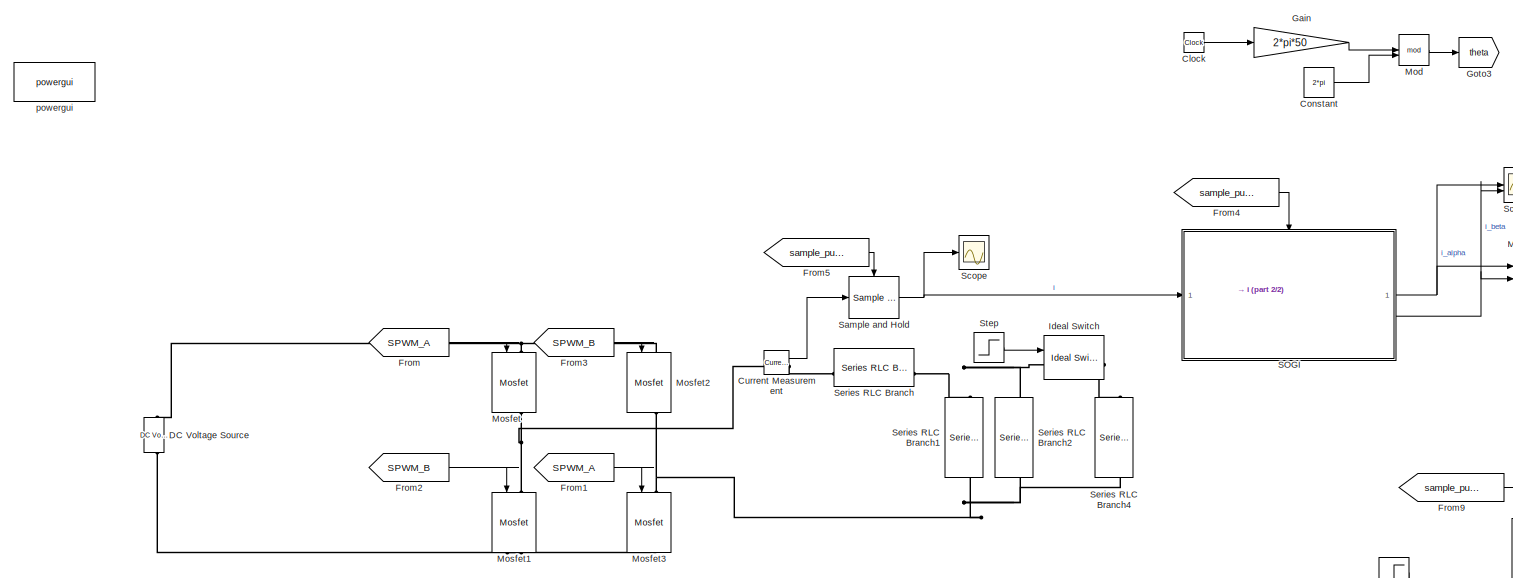
[diagram: root canvas - part 1/2, top left region]
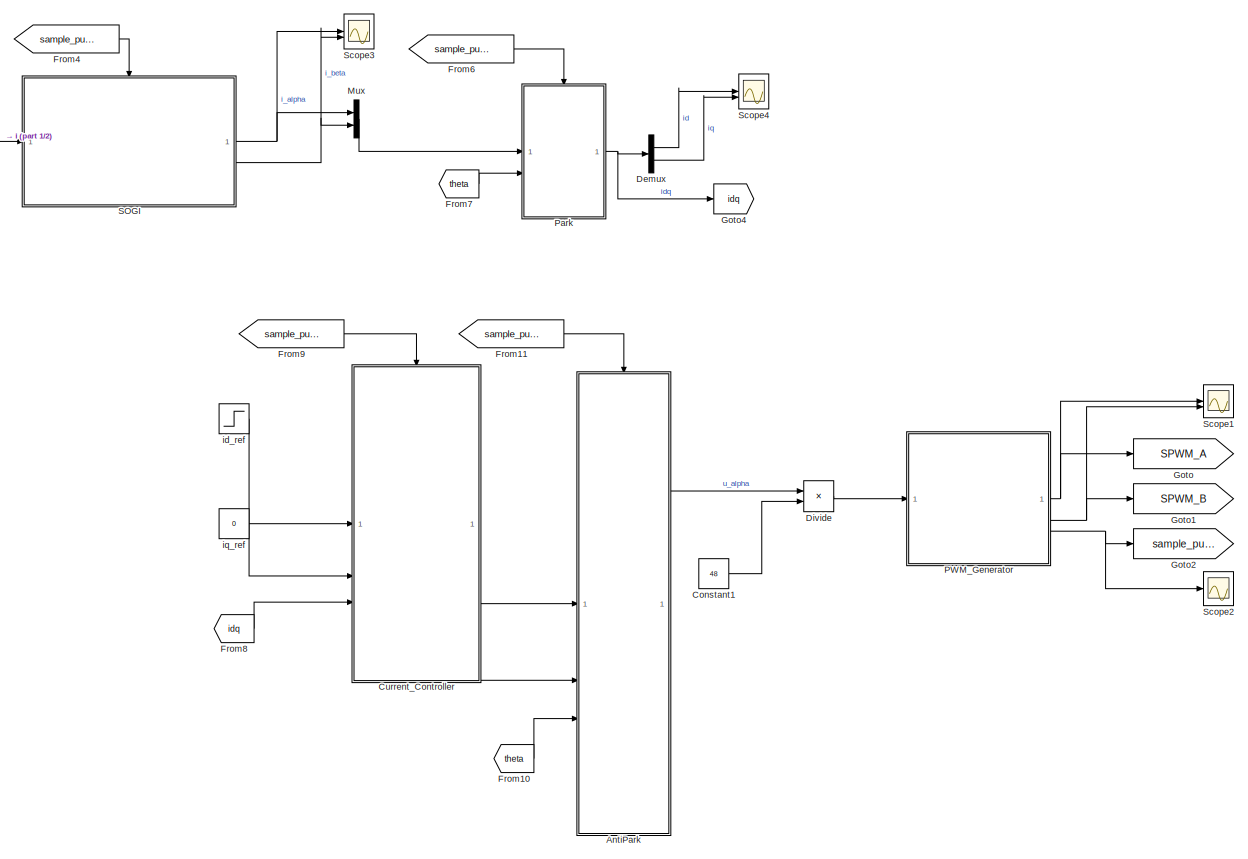
[diagram: root canvas - part 2/2, right side, full height]
MODEL slx_0fc7b11d94e0
KIND model
CONFIG AbsTol = auto
CONFIG EnableMultiTasking = off
CONFIG FixedStep = 1e-6
CONFIG MaxStep = 1e-8
CONFIG MinStep = auto
CONFIG RelTol = 1e-7
CONFIG SampleTimeConstraint = Unconstrained
CONFIG SolverName = VariableStepAuto
CONFIG StartTime = 0.0
CONFIG StopTime = 0.1
WORKSPACE source: mxarray member
WORKSPACE Ts = 2.5e-05
WORKSPACE wr = 314.159265359
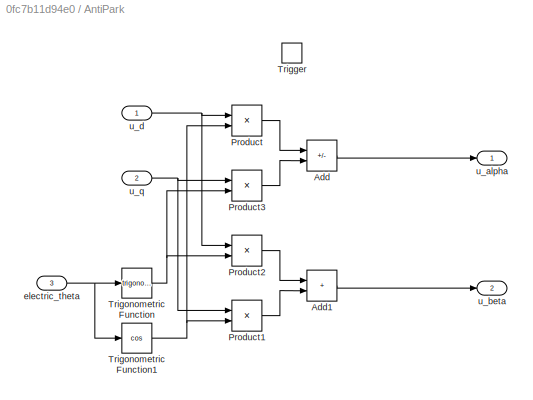
BLOCK [SubSystem] AntiPark
BLOCK [Sum] AntiPark/Add
  IconShape = rectangular
  Inputs = +-
BLOCK [Sum] AntiPark/Add1
  IconShape = rectangular
BLOCK [Product] AntiPark/Product
BLOCK [Product] AntiPark/Product1
BLOCK [Product] AntiPark/Product2
BLOCK [Product] AntiPark/Product3
BLOCK [TriggerPort] AntiPark/Trigger
  StatesWhenEnabling = held
  VariantControl = (inherit)
BLOCK [Trigonometry] AntiPark/Trigonometric Function
BLOCK [Trigonometry] AntiPark/Trigonometric Function1
  Operator = cos
BLOCK [Inport] AntiPark/electric_theta
  Port = 3
BLOCK [Outport] AntiPark/u_alpha
BLOCK [Outport] AntiPark/u_beta
  Port = 2
BLOCK [Inport] AntiPark/u_d
BLOCK [Inport] AntiPark/u_q
  Port = 2
BLOCK [Clock] Clock
BLOCK [Constant] Constant
  Value = 2*pi
BLOCK [Constant] Constant1
  Value = 48
BLOCK [Reference] Current Measurement  REF=spsCurrentMeasurementLib/Current Measurement
  LibrarySourceBlock = sps_lib/Sensors and Measurements/Current Measurement
  SourceBlock = spsCurrentMeasurementLib/Current Measurement
  SourceType = Current Measurement
  UserDataPersistent = on
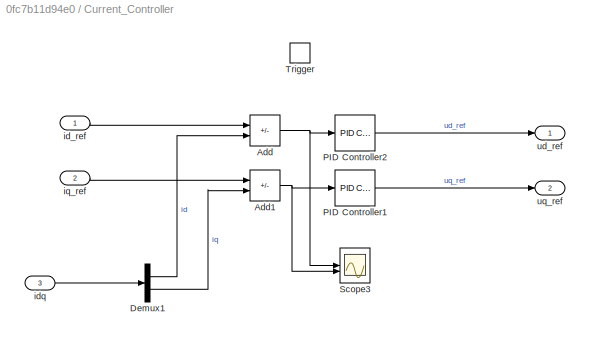
BLOCK [SubSystem] Current_Controller
BLOCK [Sum] Current_Controller/Add
  IconShape = rectangular
  Inputs = +-
BLOCK [Sum] Current_Controller/Add1
  IconShape = rectangular
  Inputs = +-
BLOCK [Demux] Current_Controller/Demux1
  Outputs = 2
BLOCK [Reference] Current_Controller/PID Controller1  REF=slpidlib/PID Controller
  LibrarySourceBlock = simulink/Continuous/PID Controller
  SourceBlock = slpidlib/PID Controller
  SourceType = PID 1dof
BLOCK [Reference] Current_Controller/PID Controller2  REF=slpidlib/PID Controller
  LibrarySourceBlock = simulink/Continuous/PID Controller
  SourceBlock = slpidlib/PID Controller
  SourceType = PID 1dof
BLOCK [Scope] Current_Controller/Scope3
  Floating = off
  NumInputPorts = 2
  ScopeSpecificationString = Simulink.scopes.TimeScopeBlockCfg('CurrentConfiguration', extmgr.ConfigurationSet(extmgr.Configuration('Core','General UI',true,'FigureColor',[1 1 1]),extmgr.Configuration('Core','Source UI',true),extmgr.Configuration('Sources','WiredSimulink',true,'DataLoggingVariableName','ScopeData3'),extmgr.Configuration('Visuals','Time Domain',true,'SerializedDisplays',{struct('MinYLimReal','-1.37462','MaxYLi...<+2341ch>
BLOCK [TriggerPort] Current_Controller/Trigger
  StatesWhenEnabling = held
  VariantControl = (inherit)
BLOCK [Inport] Current_Controller/id_ref
BLOCK [Inport] Current_Controller/idq
  Port = 3
BLOCK [Inport] Current_Controller/iq_ref
  Port = 2
BLOCK [Outport] Current_Controller/ud_ref
BLOCK [Outport] Current_Controller/uq_ref
  Port = 2
BLOCK [Reference] DC Voltage Source  REF=spsDCVoltageSourceLib/DC Voltage Source
  LibrarySourceBlock = sps_lib/Sources/DC Voltage Source
  SourceBlock = spsDCVoltageSourceLib/DC Voltage Source
  SourceType = DC Voltage Source
BLOCK [Demux] Demux
  Outputs = 2
BLOCK [Product] Divide
  Inputs = */
BLOCK [From] From
  GotoTag = SPWM_A
BLOCK [From] From1
  GotoTag = SPWM_A
BLOCK [From] From10
  GotoTag = theta
BLOCK [From] From11
  GotoTag = sample_pulse
BLOCK [From] From2
  GotoTag = SPWM_B
BLOCK [From] From3
  GotoTag = SPWM_B
BLOCK [From] From4
  GotoTag = sample_pulse
BLOCK [From] From5
  GotoTag = sample_pulse
BLOCK [From] From6
  GotoTag = sample_pulse
BLOCK [From] From7
  GotoTag = theta
BLOCK [From] From8
  GotoTag = idq
BLOCK [From] From9
  GotoTag = sample_pulse
BLOCK [Gain] Gain
  Gain = 2*pi*50
BLOCK [Goto] Goto
  GotoTag = SPWM_A
BLOCK [Goto] Goto1
  GotoTag = SPWM_B
BLOCK [Goto] Goto2
  GotoTag = sample_pulse
BLOCK [Goto] Goto3
  GotoTag = theta
BLOCK [Goto] Goto4
  GotoTag = idq
BLOCK [Reference] Ideal Switch  REF=spsIdealSwitchLib/Ideal Switch
  LibrarySourceBlock = sps_lib/Power Electronics/Ideal Switch
  SourceBlock = spsIdealSwitchLib/Ideal Switch
  SourceType = Ideal Switch
BLOCK [Math] Mod
  Operator = mod
BLOCK [Reference] Mosfet  REF=spsMosfetLib/Mosfet
  LibrarySourceBlock = sps_lib/Power Electronics/Mosfet
  NameLocation = left
  SourceBlock = spsMosfetLib/Mosfet
  SourceType = Mosfet
BLOCK [Reference] Mosfet1  REF=spsMosfetLib/Mosfet
  LibrarySourceBlock = sps_lib/Power Electronics/Mosfet
  NameLocation = left
  SourceBlock = spsMosfetLib/Mosfet
  SourceType = Mosfet
BLOCK [Reference] Mosfet2  REF=spsMosfetLib/Mosfet
  LibrarySourceBlock = sps_lib/Power Electronics/Mosfet
  NameLocation = left
  SourceBlock = spsMosfetLib/Mosfet
  SourceType = Mosfet
BLOCK [Reference] Mosfet3  REF=spsMosfetLib/Mosfet
  LibrarySourceBlock = sps_lib/Power Electronics/Mosfet
  NameLocation = left
  SourceBlock = spsMosfetLib/Mosfet
  SourceType = Mosfet
BLOCK [Mux] Mux
  DisplayOption = bar
  Inputs = 2
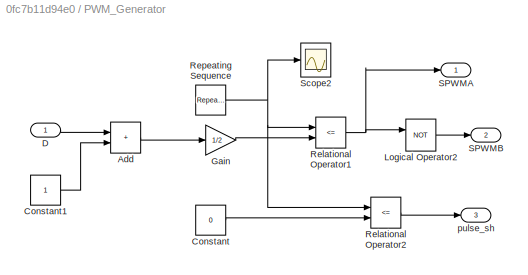
BLOCK [SubSystem] PWM_Generator
BLOCK [Sum] PWM_Generator/Add
  IconShape = rectangular
BLOCK [Constant] PWM_Generator/Constant
  Value = 0
BLOCK [Constant] PWM_Generator/Constant1
BLOCK [Inport] PWM_Generator/D
BLOCK [Gain] PWM_Generator/Gain
  Gain = 1/2
BLOCK [Logic] PWM_Generator/Logical Operator2
  AllPortsSameDT = off
  Operator = NOT
  OutDataTypeStr = boolean
BLOCK [RelationalOperator] PWM_Generator/Relational Operator1
  InputSameDT = off
  Operator = <=
  OutDataTypeStr = boolean
  RndMeth = Simplest
BLOCK [RelationalOperator] PWM_Generator/Relational Operator2
  InputSameDT = off
  Operator = <=
  OutDataTypeStr = boolean
  RndMeth = Simplest
BLOCK [Reference] PWM_Generator/Repeating Sequence  REF=simulink/Sources/Repeating
Sequence
  SourceBlock = simulink/Sources/Repeating\nSequence
  SourceType = Repeating table
BLOCK [Outport] PWM_Generator/SPWMA
BLOCK [Outport] PWM_Generator/SPWMB
  Port = 2
BLOCK [Scope] PWM_Generator/Scope2
  Floating = off
  NumInputPorts = 1
  ScopeSpecificationString = Simulink.scopes.TimeScopeBlockCfg('CurrentConfiguration', extmgr.ConfigurationSet(extmgr.Configuration('Core','General UI',true,'FigureColor',[1 1 1]),extmgr.Configuration('Core','Source UI',true),extmgr.Configuration('Sources','WiredSimulink',true,'DataLoggingVariableName','ScopeData2'),extmgr.Configuration('Visuals','Time Domain',true,'SerializedDisplays',{struct('MinYLimReal','-1.01132','MaxYLi...<+2689ch>
BLOCK [Outport] PWM_Generator/pulse_sh
  Port = 3
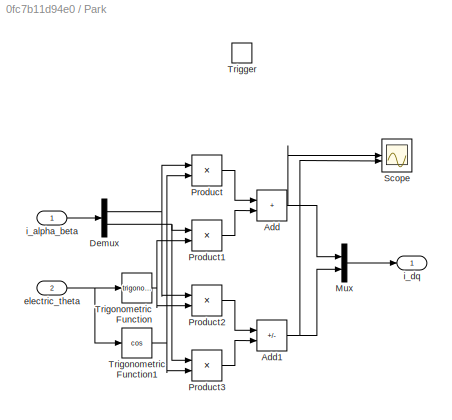
BLOCK [SubSystem] Park
BLOCK [Sum] Park/Add
  IconShape = rectangular
BLOCK [Sum] Park/Add1
  IconShape = rectangular
  Inputs = -+
BLOCK [Demux] Park/Demux
  Outputs = 2
BLOCK [Mux] Park/Mux
  DisplayOption = bar
  Inputs = 2
BLOCK [Product] Park/Product
BLOCK [Product] Park/Product1
BLOCK [Product] Park/Product2
BLOCK [Product] Park/Product3
BLOCK [Scope] Park/Scope
  Floating = off
  NumInputPorts = 2
  ScopeSpecificationString = Simulink.scopes.TimeScopeBlockCfg('CurrentConfiguration', extmgr.ConfigurationSet(extmgr.Configuration('Core','General UI',true),extmgr.Configuration('Core','Source UI',true),extmgr.Configuration('Sources','WiredSimulink',true,'DataLoggingVariableName','ScopeData3'),extmgr.Configuration('Visuals','Time Domain',true,'SerializedDisplays',{struct('MinYLimReal','-0.53079','MaxYLimReal','2.90578','YLab...<+1369ch>
BLOCK [TriggerPort] Park/Trigger
  StatesWhenEnabling = held
  VariantControl = (inherit)
BLOCK [Trigonometry] Park/Trigonometric Function
BLOCK [Trigonometry] Park/Trigonometric Function1
  Operator = cos
BLOCK [Inport] Park/electric_theta
  Port = 2
BLOCK [Inport] Park/i_alpha_beta
BLOCK [Outport] Park/i_dq
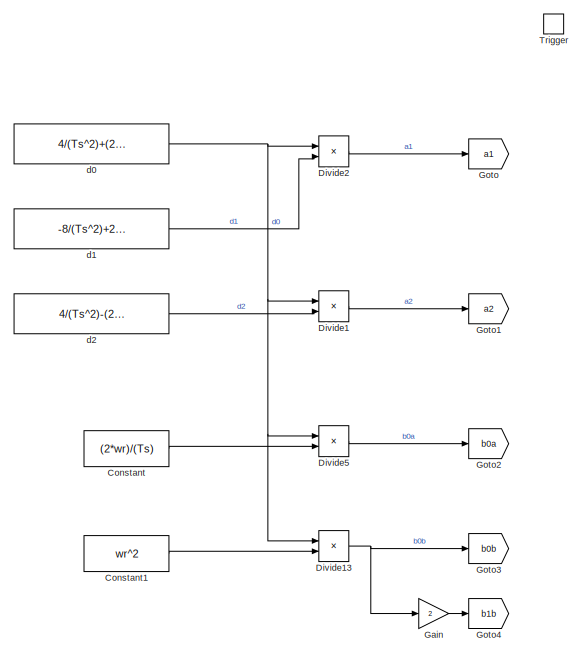
[diagram: SOGI - part 1/2, middle left region]
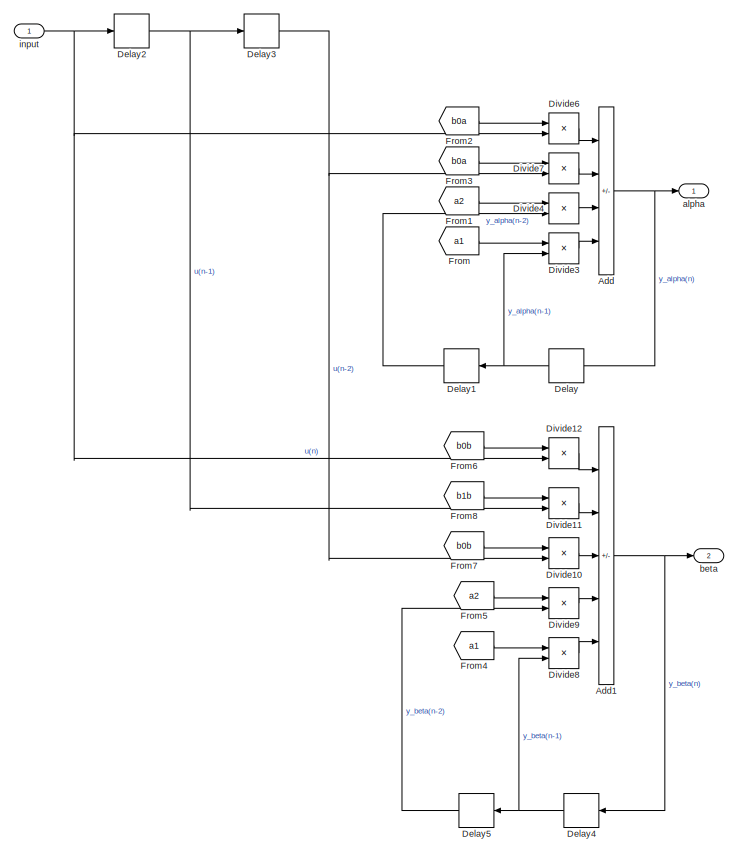
[diagram: SOGI - part 2/2, right side, full height]
BLOCK [SubSystem] SOGI
  TreatAsAtomicUnit = on
BLOCK [Sum] SOGI/Add
  IconShape = rectangular
  Inputs = +---
BLOCK [Sum] SOGI/Add1
  IconShape = rectangular
  Inputs = +++--
BLOCK [Constant] SOGI/Constant
  Value = (2*wr)/(Ts)
BLOCK [Constant] SOGI/Constant1
  Value = wr^2
BLOCK [Delay] SOGI/Delay
  DelayLength = 1
  InitialCondition = 0
  InputPortMap = u0
  NameLocation = top
BLOCK [Delay] SOGI/Delay1
  DelayLength = 1
  InitialCondition = 0
  InputPortMap = u0
  NameLocation = top
BLOCK [Delay] SOGI/Delay2
  DelayLength = 1
  InitialCondition = 0
  InputPortMap = u0
BLOCK [Delay] SOGI/Delay3
  DelayLength = 1
  InitialCondition = 0
  InputPortMap = u0
BLOCK [Delay] SOGI/Delay4
  DelayLength = 1
  InitialCondition = 0
  InputPortMap = u0
  NameLocation = top
BLOCK [Delay] SOGI/Delay5
  DelayLength = 1
  InitialCondition = 0
  InputPortMap = u0
  NameLocation = top
BLOCK [Product] SOGI/Divide1
  Inputs = /*
BLOCK [Product] SOGI/Divide10
  Inputs = **
BLOCK [Product] SOGI/Divide11
  Inputs = **
BLOCK [Product] SOGI/Divide12
  Inputs = **
BLOCK [Product] SOGI/Divide13
  Inputs = /*
BLOCK [Product] SOGI/Divide2
  Inputs = /*
BLOCK [Product] SOGI/Divide3
  Inputs = **
BLOCK [Product] SOGI/Divide4
  Inputs = **
BLOCK [Product] SOGI/Divide5
  Inputs = /*
BLOCK [Product] SOGI/Divide6
  Inputs = **
BLOCK [Product] SOGI/Divide7
  Inputs = **
BLOCK [Product] SOGI/Divide8
  Inputs = **
BLOCK [Product] SOGI/Divide9
  Inputs = **
BLOCK [From] SOGI/From
  GotoTag = a1
BLOCK [From] SOGI/From1
  GotoTag = a2
BLOCK [From] SOGI/From2
  GotoTag = b0a
BLOCK [From] SOGI/From3
  GotoTag = b0a
BLOCK [From] SOGI/From4
  GotoTag = a1
BLOCK [From] SOGI/From5
  GotoTag = a2
BLOCK [From] SOGI/From6
  GotoTag = b0b
BLOCK [From] SOGI/From7
  GotoTag = b0b
BLOCK [From] SOGI/From8
  GotoTag = b1b
BLOCK [Gain] SOGI/Gain
  Gain = 2
BLOCK [Goto] SOGI/Goto
  GotoTag = a1
BLOCK [Goto] SOGI/Goto1
  GotoTag = a2
BLOCK [Goto] SOGI/Goto2
  GotoTag = b0a
BLOCK [Goto] SOGI/Goto3
  GotoTag = b0b
BLOCK [Goto] SOGI/Goto4
  GotoTag = b1b
BLOCK [TriggerPort] SOGI/Trigger
  StatesWhenEnabling = held
  VariantControl = (inherit)
BLOCK [Outport] SOGI/alpha
BLOCK [Outport] SOGI/beta
  Port = 2
BLOCK [Constant] SOGI/d0
  Value = 4/(Ts^2)+(2*wr)/(Ts)+(wr^2)
BLOCK [Constant] SOGI/d1
  Value = -8/(Ts^2)+2*(wr^2)
BLOCK [Constant] SOGI/d2
  Value = 4/(Ts^2)-(2*wr)/(Ts)+(wr^2)
BLOCK [Inport] SOGI/input
BLOCK [Reference] Sample and Hold  REF=dspsigops/Sample
and Hold
  SourceBlock = dspsigops/Sample\nand Hold
  SourceType = Sample and Hold
BLOCK [Scope] Scope
  Floating = off
  NumInputPorts = 1
  ScopeSpecificationString = Simulink.scopes.TimeScopeBlockCfg('CurrentConfiguration', extmgr.ConfigurationSet(extmgr.Configuration('Core','General UI',true,'FigureColor',[1 1 1]),extmgr.Configuration('Core','Source UI',true),extmgr.Configuration('Sources','WiredSimulink',true),extmgr.Configuration('Visuals','Time Domain',true,'SerializedDisplays',{struct('MinYLimReal','-5.80308','MaxYLimReal','7.84985','YLabelReal','','MinYL...<+2295ch>
BLOCK [Scope] Scope1
  Floating = off
  NumInputPorts = 2
  ScopeSpecificationString = Simulink.scopes.TimeScopeBlockCfg('CurrentConfiguration', extmgr.ConfigurationSet(extmgr.Configuration('Core','General UI',true,'FigureColor',[1 1 1]),extmgr.Configuration('Core','Source UI',true),extmgr.Configuration('Sources','WiredSimulink',true,'DataLoggingVariableName','ScopeData1'),extmgr.Configuration('Visuals','Time Domain',true,'SerializedDisplays',{struct('MinYLimReal','-0.01597','MaxYLi...<+2736ch>
BLOCK [Scope] Scope2
  Floating = off
  NumInputPorts = 1
  ScopeSpecificationString = Simulink.scopes.TimeScopeBlockCfg('CurrentConfiguration', extmgr.ConfigurationSet(extmgr.Configuration('Core','General UI',true,'FigureColor',[1 1 1]),extmgr.Configuration('Core','Source UI',true),extmgr.Configuration('Sources','WiredSimulink',true,'DataLoggingVariableName','ScopeData1'),extmgr.Configuration('Visuals','Time Domain',true,'SerializedDisplays',{struct('MinYLimReal','-0.03235','MaxYLi...<+2682ch>
BLOCK [Scope] Scope3
  Floating = off
  NumInputPorts = 2
  ScopeSpecificationString = Simulink.scopes.TimeScopeBlockCfg('CurrentConfiguration', extmgr.ConfigurationSet(extmgr.Configuration('Core','General UI',true,'FigureColor',[1 1 1]),extmgr.Configuration('Core','Source UI',true),extmgr.Configuration('Sources','WiredSimulink',true,'DataLoggingVariableName','ScopeData1'),extmgr.Configuration('Visuals','Time Domain',true,'SerializedDisplays',{struct('MinYLimReal','-4.60995','MaxYLi...<+2349ch>
BLOCK [Scope] Scope4
  Floating = off
  NumInputPorts = 2
  ScopeSpecificationString = Simulink.scopes.TimeScopeBlockCfg('CurrentConfiguration', extmgr.ConfigurationSet(extmgr.Configuration('Core','General UI',true,'FigureColor',[1 1 1]),extmgr.Configuration('Core','Source UI',true),extmgr.Configuration('Sources','WiredSimulink',true,'DataLoggingVariableName','ScopeData2'),extmgr.Configuration('Visuals','Time Domain',true,'SerializedDisplays',{struct('MinYLimReal','-4.60995','MaxYLi...<+2340ch>
BLOCK [Reference] Series RLC Branch  REF=spsSeriesRLCBranchLib/Series RLC Branch
  LibrarySourceBlock = sps_lib/Passives/Series RLC Branch
  SourceBlock = spsSeriesRLCBranchLib/Series RLC Branch
  SourceType = Series RLC Branch
BLOCK [Reference] Series RLC Branch1  REF=spsSeriesRLCBranchLib/Series RLC Branch
  LibrarySourceBlock = sps_lib/Passives/Series RLC Branch
  NameLocation = left
  SourceBlock = spsSeriesRLCBranchLib/Series RLC Branch
  SourceType = Series RLC Branch
BLOCK [Reference] Series RLC Branch2  REF=spsSeriesRLCBranchLib/Series RLC Branch
  LibrarySourceBlock = sps_lib/Passives/Series RLC Branch
  NameLocation = left
  SourceBlock = spsSeriesRLCBranchLib/Series RLC Branch
  SourceType = Series RLC Branch
BLOCK [Reference] Series RLC Branch4  REF=spsSeriesRLCBranchLib/Series RLC Branch
  LibrarySourceBlock = sps_lib/Passives/Series RLC Branch
  NameLocation = left
  SourceBlock = spsSeriesRLCBranchLib/Series RLC Branch
  SourceType = Series RLC Branch
BLOCK [Step] Step
  SampleTime = 0
  Time = 0.1
BLOCK [Step] id_ref
  Before = 2
  SampleTime = 0
  Time = 0.05
BLOCK [Constant] iq_ref
  Value = 0
BLOCK [Reference] powergui  REF=sps_lib/powergui
  Priority = 1
  SourceBlock = sps_lib/powergui
  SourceType = PSB option menu block
LINE AntiPark/Add1:1 -> AntiPark/u_beta:1
LINE AntiPark/Add:1 -> AntiPark/u_alpha:1
LINE AntiPark/Product1:1 -> AntiPark/Add1:2
LINE AntiPark/Product2:1 -> AntiPark/Add1:1
LINE AntiPark/Product3:1 -> AntiPark/Add:2
LINE AntiPark/Product:1 -> AntiPark/Add:1
NET AntiPark/Trigonometric Function1:1 -> AntiPark/Product1:2, AntiPark/Product:2
NET AntiPark/Trigonometric Function:1 -> AntiPark/Product2:2, AntiPark/Product3:2
NET AntiPark/electric_theta:1 -> AntiPark/Trigonometric Function1:1, AntiPark/Trigonometric Function:1
NET AntiPark/u_d:1 -> AntiPark/Product2:1, AntiPark/Product:1
NET AntiPark/u_q:1 -> AntiPark/Product1:1, AntiPark/Product3:1
LINE AntiPark:1 -> Divide:1
LINE Clock:1 -> Gain:1
LINE Constant1:1 -> Divide:2
LINE Constant:1 -> Mod:2
LINE Current Measurement:1 -> Sample and Hold:1
NET Current_Controller/Add1:1 -> Current_Controller/PID Controller1:1, Current_Controller/Scope3:2
NET Current_Controller/Add:1 -> Current_Controller/PID Controller2:1, Current_Controller/Scope3:1
LINE Current_Controller/Demux1:1 -> Current_Controller/Add:2
LINE Current_Controller/Demux1:2 -> Current_Controller/Add1:2
LINE Current_Controller/PID Controller1:1 -> Current_Controller/uq_ref:1
LINE Current_Controller/PID Controller2:1 -> Current_Controller/ud_ref:1
LINE Current_Controller/id_ref:1 -> Current_Controller/Add:1
LINE Current_Controller/idq:1 -> Current_Controller/Demux1:1
LINE Current_Controller/iq_ref:1 -> Current_Controller/Add1:1
LINE Current_Controller:1 -> AntiPark:1
LINE Current_Controller:2 -> AntiPark:2
LINE Demux:1 -> Scope4:1
LINE Demux:2 -> Scope4:2
LINE Divide:1 -> PWM_Generator:1
LINE From10:1 -> AntiPark:3
LINE From11:1 -> AntiPark:trigger
LINE From1:1 -> Mosfet3:1
LINE From2:1 -> Mosfet1:1
LINE From3:1 -> Mosfet2:1
LINE From4:1 -> SOGI:trigger
LINE From5:1 -> Sample and Hold:trigger
LINE From6:1 -> Park:trigger
LINE From7:1 -> Park:2
LINE From8:1 -> Current_Controller:3
LINE From9:1 -> Current_Controller:trigger
LINE From:1 -> Mosfet:1
LINE Gain:1 -> Mod:1
LINE Mod:1 -> Goto3:1
LINE Mux:1 -> Park:1
LINE PWM_Generator/Add:1 -> PWM_Generator/Gain:1
LINE PWM_Generator/Constant1:1 -> PWM_Generator/Add:2
LINE PWM_Generator/Constant:1 -> PWM_Generator/Relational Operator2:2
LINE PWM_Generator/D:1 -> PWM_Generator/Add:1
LINE PWM_Generator/Gain:1 -> PWM_Generator/Relational Operator1:2
LINE PWM_Generator/Logical Operator2:1 -> PWM_Generator/SPWMB:1
NET PWM_Generator/Relational Operator1:1 -> PWM_Generator/Logical Operator2:1, PWM_Generator/SPWMA:1
LINE PWM_Generator/Relational Operator2:1 -> PWM_Generator/pulse_sh:1
NET PWM_Generator/Repeating Sequence:1 -> PWM_Generator/Relational Operator1:1, PWM_Generator/Relational Operator2:1, PWM_Generator/Scope2:1
NET PWM_Generator:1 -> Goto:1, Scope1:1
NET PWM_Generator:2 -> Goto1:1, Scope1:2
NET PWM_Generator:3 -> Goto2:1, Scope2:1
NET Park/Add1:1 -> Park/Mux:2, Park/Scope:2
NET Park/Add:1 -> Park/Mux:1, Park/Scope:1
NET Park/Demux:1 -> Park/Product2:1, Park/Product:1
NET Park/Demux:2 -> Park/Product1:1, Park/Product3:1
LINE Park/Mux:1 -> Park/i_dq:1
LINE Park/Product1:1 -> Park/Add:2
LINE Park/Product2:1 -> Park/Add1:1
LINE Park/Product3:1 -> Park/Add1:2
LINE Park/Product:1 -> Park/Add:1
NET Park/Trigonometric Function1:1 -> Park/Product3:2, Park/Product:2
NET Park/Trigonometric Function:1 -> Park/Product1:2, Park/Product2:2
NET Park/electric_theta:1 -> Park/Trigonometric Function1:1, Park/Trigonometric Function:1
LINE Park/i_alpha_beta:1 -> Park/Demux:1
NET Park:1 -> Demux:1, Goto4:1
NET SOGI/Add1:1 -> SOGI/Delay4:1, SOGI/beta:1
NET SOGI/Add:1 -> SOGI/Delay:1, SOGI/alpha:1
LINE SOGI/Constant1:1 -> SOGI/Divide13:2
LINE SOGI/Constant:1 -> SOGI/Divide5:2
LINE SOGI/Delay1:1 -> SOGI/Divide4:2
NET SOGI/Delay2:1 -> SOGI/Delay3:1, SOGI/Divide11:2
NET SOGI/Delay3:1 -> SOGI/Divide10:2, SOGI/Divide7:2
NET SOGI/Delay4:1 -> SOGI/Delay5:1, SOGI/Divide8:2
LINE SOGI/Delay5:1 -> SOGI/Divide9:2
NET SOGI/Delay:1 -> SOGI/Delay1:1, SOGI/Divide3:2
LINE SOGI/Divide10:1 -> SOGI/Add1:3
LINE SOGI/Divide11:1 -> SOGI/Add1:2
LINE SOGI/Divide12:1 -> SOGI/Add1:1
NET SOGI/Divide13:1 -> SOGI/Gain:1, SOGI/Goto3:1
LINE SOGI/Divide1:1 -> SOGI/Goto1:1
LINE SOGI/Divide2:1 -> SOGI/Goto:1
LINE SOGI/Divide3:1 -> SOGI/Add:4
LINE SOGI/Divide4:1 -> SOGI/Add:3
LINE SOGI/Divide5:1 -> SOGI/Goto2:1
LINE SOGI/Divide6:1 -> SOGI/Add:1
LINE SOGI/Divide7:1 -> SOGI/Add:2
LINE SOGI/Divide8:1 -> SOGI/Add1:5
LINE SOGI/Divide9:1 -> SOGI/Add1:4
LINE SOGI/From1:1 -> SOGI/Divide4:1
LINE SOGI/From2:1 -> SOGI/Divide6:1
LINE SOGI/From3:1 -> SOGI/Divide7:1
LINE SOGI/From4:1 -> SOGI/Divide8:1
LINE SOGI/From5:1 -> SOGI/Divide9:1
LINE SOGI/From6:1 -> SOGI/Divide12:1
LINE SOGI/From7:1 -> SOGI/Divide10:1
LINE SOGI/From8:1 -> SOGI/Divide11:1
LINE SOGI/From:1 -> SOGI/Divide3:1
LINE SOGI/Gain:1 -> SOGI/Goto4:1
NET SOGI/d0:1 -> SOGI/Divide13:1, SOGI/Divide1:1, SOGI/Divide2:1, SOGI/Divide5:1
LINE SOGI/d1:1 -> SOGI/Divide2:2
LINE SOGI/d2:1 -> SOGI/Divide1:2
NET SOGI/input:1 -> SOGI/Delay2:1, SOGI/Divide12:2, SOGI/Divide6:2
NET SOGI:1 -> Mux:1, Scope3:1
NET SOGI:2 -> Mux:2, Scope3:2
NET Sample and Hold:1 -> SOGI:1, Scope:1
LINE Step:1 -> Ideal Switch:1
LINE id_ref:1 -> Current_Controller:1
LINE iq_ref:1 -> Current_Controller:2
PNET net1: Current Measurement:LConn1 -- Mosfet1:LConn1 -- Mosfet:RConn1
PLINE Current Measurement:RConn1 -- Series RLC Branch:LConn1
PNET net2: DC Voltage Source:LConn1 -- Mosfet1:RConn1 -- Mosfet3:RConn1
PNET net3: DC Voltage Source:RConn1 -- Mosfet2:LConn1 -- Mosfet:LConn1
PNET net4: Ideal Switch:LConn1 -- Series RLC Branch1:LConn1 -- Series RLC Branch2:LConn1 -- Series RLC Branch:RConn1
PLINE Ideal Switch:RConn1 -- Series RLC Branch4:LConn1
PNET net5: Mosfet2:RConn1 -- Mosfet3:LConn1 -- Series RLC Branch1:RConn1 -- Series RLC Branch2:RConn1 -- Series RLC Branch4:RConn1
note: NET lines group one-source signal fan-out (src -> all destinations, sorted); 1:1 wires keep LINE; PNET lines group multi-terminal physical nets as a canonical sorted terminal list (undirected conserving connections); 2-terminal nets keep the pairwise PLINE form
